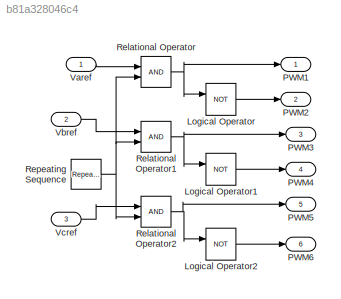
MODEL slx_b81a328046c4
KIND model
CONFIG AbsTol = auto
CONFIG EnableMultiTasking = off
CONFIG FixedStep = auto
CONFIG MaxStep = auto
CONFIG MinStep = auto
CONFIG RelTol = 1e-3
CONFIG SampleTimeConstraint = Unconstrained
CONFIG SolverName = VariableStepAuto
CONFIG StartTime = 0.0
CONFIG StopTime = 10.0
BLOCK [Logic] Logical Operator
  AllPortsSameDT = off
  Operator = NOT
  OutDataTypeStr = boolean
BLOCK [Logic] Logical Operator1
  AllPortsSameDT = off
  Operator = NOT
  OutDataTypeStr = boolean
BLOCK [Logic] Logical Operator2
  AllPortsSameDT = off
  Operator = NOT
  OutDataTypeStr = boolean
BLOCK [Outport] PWM1
BLOCK [Outport] PWM2
  Port = 2
BLOCK [Outport] PWM3
  Port = 3
BLOCK [Outport] PWM4
  Port = 4
BLOCK [Outport] PWM5
  Port = 5
BLOCK [Outport] PWM6
  Port = 6
BLOCK [RelationalOperator] Relational Operator
  InputSameDT = off
  OutDataTypeStr = boolean
  RndMeth = Simplest
BLOCK [RelationalOperator] Relational Operator1
  InputSameDT = off
  OutDataTypeStr = boolean
  RndMeth = Simplest
BLOCK [RelationalOperator] Relational Operator2
  InputSameDT = off
  OutDataTypeStr = boolean
  RndMeth = Simplest
BLOCK [Reference] Repeating Sequence  REF=simulink/Sources/Repeating
Sequence
  SourceBlock = simulink/Sources/Repeating\nSequence
  SourceType = Repeating table
BLOCK [Inport] Varef
BLOCK [Inport] Vbref
  Port = 2
BLOCK [Inport] Vcref
  Port = 3
LINE Logical Operator1:1 -> PWM4:1
LINE Logical Operator2:1 -> PWM6:1
LINE Logical Operator:1 -> PWM2:1
NET Relational Operator1:1 -> Logical Operator1:1, PWM3:1
NET Relational Operator2:1 -> Logical Operator2:1, PWM5:1
NET Relational Operator:1 -> Logical Operator:1, PWM1:1
NET Repeating Sequence:1 -> Relational Operator1:2, Relational Operator2:2, Relational Operator:2
LINE Varef:1 -> Relational Operator:1
LINE Vbref:1 -> Relational Operator1:1
LINE Vcref:1 -> Relational Operator2:1
note: NET lines group one-source signal fan-out (src -> all destinations, sorted); 1:1 wires keep LINE
